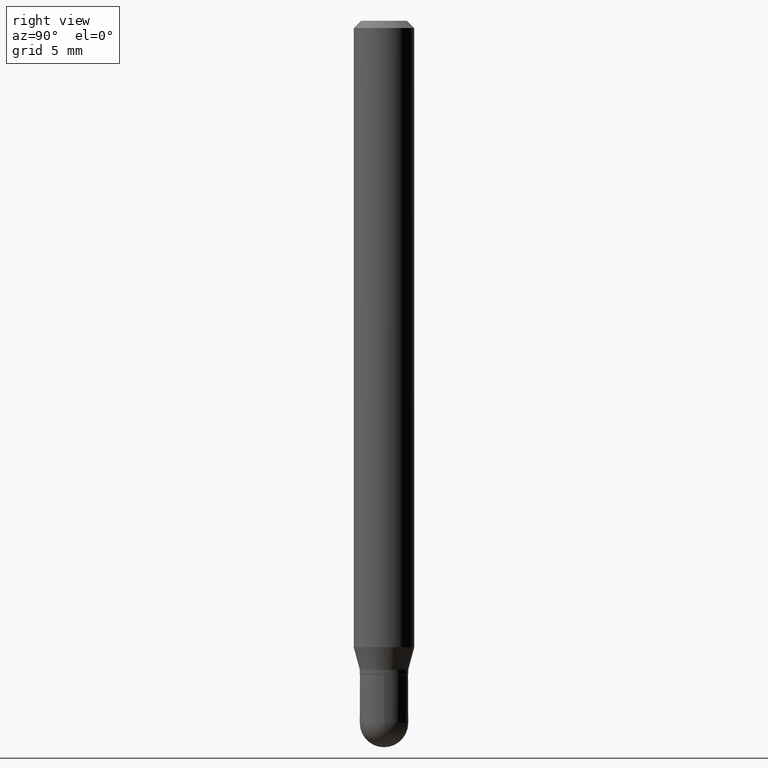
[diagram: clean part render]
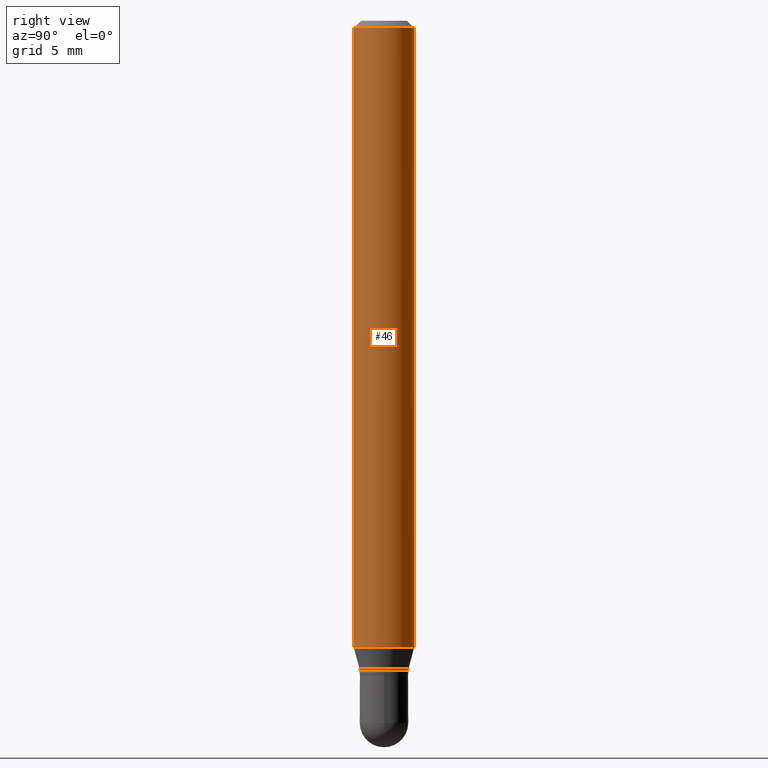
[diagram: same view with one face highlighted and labeled with its STEP entity id]
A machine part, right view. The second image highlights one B-rep face of the part: STEP entity #46.
In plain terms, the highlighted cylindrical surface (edge-blend (fillet) strip) has radius 1.5875 mm, axis along (-0, 0, 1).
Its self-contained STEP definition (entity closure, byte-faithful):
#1 = DIRECTION ( 'NONE',  ( -2.445341614175428020E-29, 3.491663485040367379E-15, 1.000000000000000000 ) ) ;
#22 = ORIENTED_EDGE ( 'NONE', *, *, #472, .T. ) ;
#34 = EDGE_CURVE ( 'NONE', #268, #97, #450, .T. ) ;
#45 = VERTEX_POINT ( 'NONE', #162 ) ;
#46 = ADVANCED_FACE ( 'NONE', ( #285 ), #326, .T. ) ;
#50 = CARTESIAN_POINT ( 'NONE',  ( 3.162681023670509800E-29, -4.515940750840297433E-15, -1.293349364905389320 ) ) ;
#67 = CARTESIAN_POINT ( 'NONE',  ( -4.364351673553598192E-16, -0.06250000000000448253, -1.293349364905389098 ) ) ;
#96 = ORIENTED_EDGE ( 'NONE', *, *, #437, .T. ) ;
#97 = VERTEX_POINT ( 'NONE', #260 ) ;
#100 = CARTESIAN_POINT ( 'NONE',  ( 3.668012421263222920E-31, -5.237495227560666341E-17, -0.01500000000000032904 ) ) ;
#103 = DIRECTION ( 'NONE',  ( -6.982962677686265922E-15, -1.000000000000000000, 3.483106191921935554E-15 ) ) ;
#104 = DIRECTION ( 'NONE',  ( -6.982962677686265922E-15, -1.000000000000000000, 4.370956789862821150E-15 ) ) ;
#131 = ORIENTED_EDGE ( 'NONE', *, *, #34, .F. ) ;
#144 = AXIS2_PLACEMENT_3D ( 'NONE', #431, #243, #205 ) ;
#162 = CARTESIAN_POINT ( 'NONE',  ( 4.440892098500943678E-16, 0.06249999999999551054, -1.293349364905389765 ) ) ;
#174 = LINE ( 'NONE', #213, #376 ) ;
#205 = DIRECTION ( 'NONE',  ( -6.982962677686265922E-15, -1.000000000000000000, 3.491663485040367379E-15 ) ) ;
#206 = CARTESIAN_POINT ( 'NONE',  ( -4.364351673553912750E-16, -0.06250000000000005551, -0.01500000000000011047 ) ) ;
#213 = CARTESIAN_POINT ( 'NONE',  ( 4.440892098500625669E-16, 0.06250000000000000000, -2.182289678150229612E-16 ) ) ;
#214 = EDGE_CURVE ( 'NONE', #377, #268, #258, .T. ) ;
#240 = AXIS2_PLACEMENT_3D ( 'NONE', #100, #453, #103 ) ;
#243 = DIRECTION ( 'NONE',  ( -2.445341614175428300E-29, 3.491663485040367379E-15, 1.000000000000000000 ) ) ;
#258 = LINE ( 'NONE', #410, #275 ) ;
#260 = CARTESIAN_POINT ( 'NONE',  ( 4.440892098500943678E-16, 0.06249999999999995143, -0.01500000000000054588 ) ) ;
#268 = VERTEX_POINT ( 'NONE', #206 ) ;
#275 = VECTOR ( 'NONE', #1, 39.37007874015748143 ) ;
#285 = FACE_OUTER_BOUND ( 'NONE', #387, .T. ) ;
#288 = AXIS2_PLACEMENT_3D ( 'NONE', #50, #352, #104 ) ;
#308 = ORIENTED_EDGE ( 'NONE', *, *, #214, .F. ) ;
#326 = CYLINDRICAL_SURFACE ( 'NONE', #144, 0.06250000000000000000 ) ;
#342 = DIRECTION ( 'NONE',  ( -2.445341614175428020E-29, 3.491663485040367379E-15, 1.000000000000000000 ) ) ;
#352 = DIRECTION ( 'NONE',  ( -2.445341614175428300E-29, 3.491663485040367379E-15, 1.000000000000000000 ) ) ;
#376 = VECTOR ( 'NONE', #342, 39.37007874015748143 ) ;
#377 = VERTEX_POINT ( 'NONE', #67 ) ;
#387 = EDGE_LOOP ( 'NONE', ( #22, #96, #131, #308 ) ) ;
#394 = CIRCLE ( 'NONE', #288, 0.06250000000000000000 ) ;
#410 = CARTESIAN_POINT ( 'NONE',  ( -4.364351673553916201E-16, -0.06250000000000000000, 2.182289678150229612E-16 ) ) ;
#431 = CARTESIAN_POINT ( 'NONE',  ( 0.000000000000000000, 0.000000000000000000, 0.000000000000000000 ) ) ;
#437 = EDGE_CURVE ( 'NONE', #45, #97, #174, .T. ) ;
#450 = CIRCLE ( 'NONE', #240, 0.06250000000000000000 ) ;
#453 = DIRECTION ( 'NONE',  ( -2.445341614175428300E-29, 3.491663485040367379E-15, 1.000000000000000000 ) ) ;
#472 = EDGE_CURVE ( 'NONE', #377, #45, #394, .T. ) ;